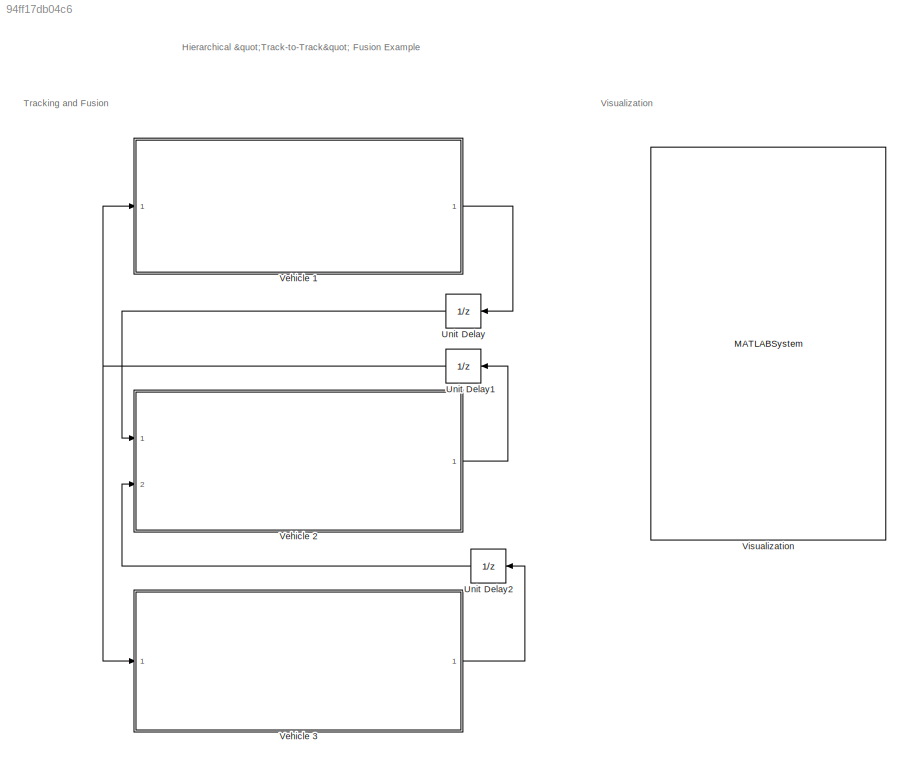
MODEL slx_94ff17db04c6
KIND model
CONFIG AbsTol = auto
CONFIG EnableMultiTasking = off
CONFIG FixedStep = 0.1
CONFIG MaxStep = auto
CONFIG MinStep = auto
CONFIG PreLoadFcn = V1Sources(1).SourceIndex = 1;\nV1Sources(1).IsInternalSource = true;\nV1Sources(1).CentralToLocalTransformFcn = 'scenarioToEgo';\nV1Sources(1).LocalToCentralTransformFcn = 'egoToScenario';\nV1Sources(2).SourceIndex = 4;\nV1Sources(2).IsInternalSource = false;\nV1Sources(2).CentralToLocalTransformFcn = 'scenarioToEgo';\nV1Sources(2).LocalToCentralTransformFcn = 'egoToScenario';\nload('TrackToTrackFusionSce...<+757ch>
CONFIG RelTol = 1e-3
CONFIG SampleTimeConstraint = Unconstrained
CONFIG SolverName = FixedStepDiscrete
CONFIG StartTime = 0.0
CONFIG StopTime = 6.45
BLOCK [UnitDelay] Unit Delay
  HasFrameUpgradeWarning = on
  NameLocation = top
  SampleTime = -1
  StateName = TrackFuser_V1
BLOCK [UnitDelay] Unit Delay1
  HasFrameUpgradeWarning = on
  NameLocation = top
  SampleTime = -1
  StateName = TrackFuser_V2
BLOCK [UnitDelay] Unit Delay2
  HasFrameUpgradeWarning = on
  NameLocation = top
  SampleTime = -1
  StateName = TrackFuser_V2
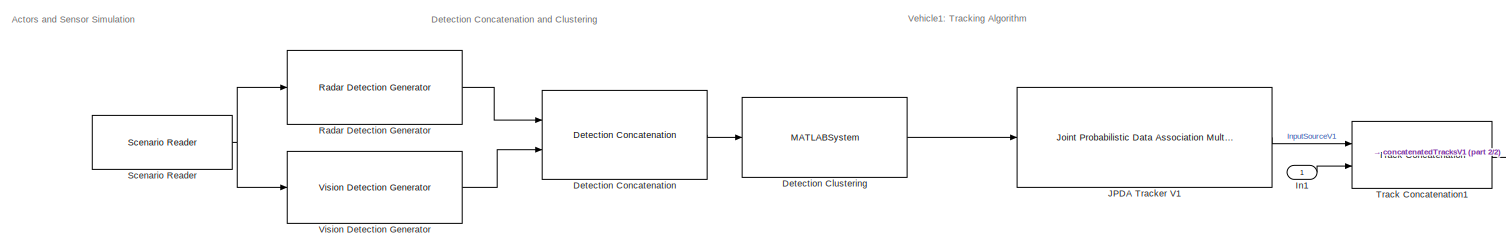
[diagram: Vehicle 1 - part 1/2, center side, full height]
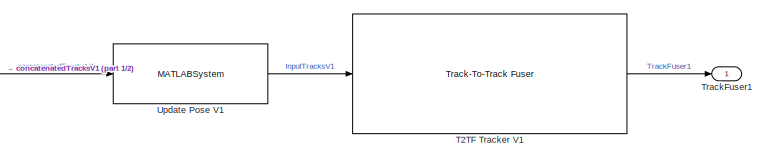
[diagram: Vehicle 1 - part 2/2, middle right region]
BLOCK [SubSystem] Vehicle 1
  Ports = [1, 1]
  RequestExecContextInheritance = off
BLOCK [MATLABSystem] Vehicle 1/Detection Clustering
  BusName = BusClusterDetections
  BusNameSource = Auto
  ClusterSize = 4.7
  MaskDisplay = disp(['Detection' char(10) 'Clustering']);\nport_label('input',1,'In');\nport_label('output',1,'Out');
  MaskType = helperClusterFuserDetections
  Ports = [1, 1]
  SimulateUsing = Code generation
  System = helperClusterFuserDetections
BLOCK [Reference] Vehicle 1/Detection Concatenation  REF=trackingutilitieslib/Detection Concatenation
  Ports = [2, 1]
  SourceBlock = trackingutilitieslib/Detection Concatenation
  SourceProductBaseCode = TF,AE,DR,RA,UV,VE
  SourceType = matlabshared.tracking.internal.DetectionConcatenation
BLOCK [Inport] Vehicle 1/In1
  NameLocation = top
BLOCK [Reference] Vehicle 1/JPDA Tracker V1  REF=motalgorithmslib/Joint Probabilistic Data Association Multi Object Tracker
  Ports = [1, 1]
  SourceBlock = motalgorithmslib/Joint Probabilistic Data Association Multi Object Tracker
  SourceProductBaseCode = TF
  SourceType = fusion.simulink.trackerJPDA
BLOCK [Reference] Vehicle 1/Radar Detection Generator  REF=drivingscenarioandsensors/Radar Detection Generator
  Ports = [1, 1]
  SourceBlock = drivingscenarioandsensors/Radar Detection Generator
  SourceProductBaseCode = DR
  SourceType = radarDetectionGenerator
BLOCK [Reference] Vehicle 1/Scenario Reader  REF=drivingscenarioandsensors/Scenario Reader
  Ports = [0, 1]
  SourceBlock = drivingscenarioandsensors/Scenario Reader
  SourceProductBaseCode = DR
  SourceType = driving.scenario.internal.ScenarioReader
BLOCK [Reference] Vehicle 1/T2TF Tracker V1  REF=motalgorithmslib/Track-To-Track Fuser
  Ports = [1, 1]
  SourceBlock = motalgorithmslib/Track-To-Track Fuser
  SourceProductBaseCode = TF
  SourceType = fusion.simulink.trackFuser
BLOCK [Reference] Vehicle 1/Track Concatenation1  REF=trackingutilitieslib/Track Concatenation
  Ports = [2, 1]
  SourceBlock = trackingutilitieslib/Track Concatenation
  SourceProductBaseCode = TF,AE,DR,RA,UV,VE
  SourceType = matlabshared.tracking.internal.TrackConcatenation
BLOCK [Outport] Vehicle 1/TrackFuser1
  NameLocation = top
BLOCK [MATLABSystem] Vehicle 1/Update Pose V1
  BusName = UpdatePoseV1
  BusNameSource = Property
  DataFile = { 'v1Pose' }
  DataVariableName = dataV1
  MaskDisplay = disp(['Helper' char(10) 'UpdatePose']);\nport_label('input',1,'In');\nport_label('output',1,'Tracks');
  MaskType = HelperUpdatePose
  Ports = [1, 1]
  System = HelperUpdatePose
  TrackerId = 1
BLOCK [Reference] Vehicle 1/Vision Detection Generator  REF=drivingscenarioandsensors/Vision Detection Generator
  Ports = [1, 1]
  SourceBlock = drivingscenarioandsensors/Vision Detection Generator
  SourceProductBaseCode = DR
  SourceType = visionDetectionGenerator
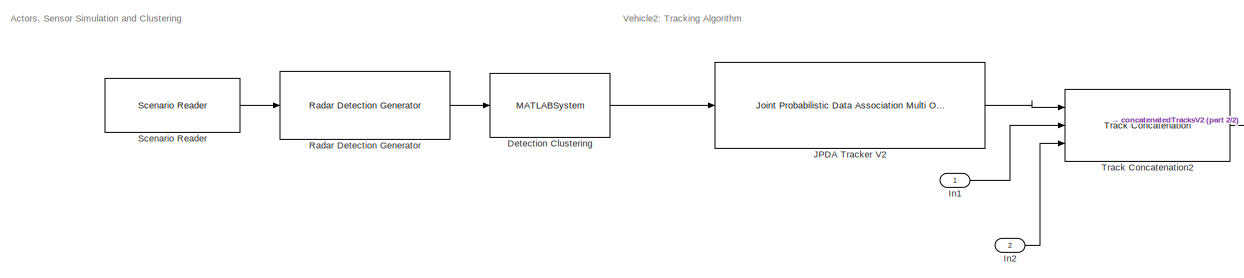
[diagram: Vehicle 2 - part 1/2, left side, full height]
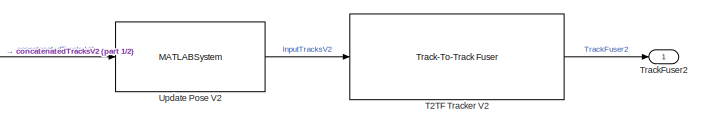
[diagram: Vehicle 2 - part 2/2, middle right region]
BLOCK [SubSystem] Vehicle 2
  Ports = [2, 1]
  RequestExecContextInheritance = off
BLOCK [MATLABSystem] Vehicle 2/Detection Clustering
  BusName = BusClusterDetections
  BusNameSource = Auto
  ClusterSize = 4.7
  MaskDisplay = disp(['Detection' char(10) 'Clustering']);\nport_label('input',1,'In');\nport_label('output',1,'Out');
  MaskType = helperClusterFuserDetections
  Ports = [1, 1]
  SimulateUsing = Code generation
  System = helperClusterFuserDetections
BLOCK [Inport] Vehicle 2/In1
  NameLocation = top
BLOCK [Inport] Vehicle 2/In2
  Port = 2
BLOCK [Reference] Vehicle 2/JPDA Tracker V2  REF=motalgorithmslib/Joint Probabilistic Data Association Multi Object Tracker
  Ports = [1, 1]
  SourceBlock = motalgorithmslib/Joint Probabilistic Data Association Multi Object Tracker
  SourceProductBaseCode = TF
  SourceType = fusion.simulink.trackerJPDA
BLOCK [Reference] Vehicle 2/Radar Detection Generator  REF=drivingscenarioandsensors/Radar Detection Generator
  Ports = [1, 1]
  SourceBlock = drivingscenarioandsensors/Radar Detection Generator
  SourceProductBaseCode = DR
  SourceType = radarDetectionGenerator
BLOCK [Reference] Vehicle 2/Scenario Reader  REF=drivingscenarioandsensors/Scenario Reader
  Ports = [0, 1]
  SourceBlock = drivingscenarioandsensors/Scenario Reader
  SourceProductBaseCode = DR
  SourceType = driving.scenario.internal.ScenarioReader
BLOCK [Reference] Vehicle 2/T2TF Tracker V2  REF=motalgorithmslib/Track-To-Track Fuser
  Ports = [1, 1]
  SourceBlock = motalgorithmslib/Track-To-Track Fuser
  SourceProductBaseCode = TF
  SourceType = fusion.simulink.trackFuser
BLOCK [Reference] Vehicle 2/Track Concatenation2  REF=trackingutilitieslib/Track Concatenation
  Ports = [3, 1]
  SourceBlock = trackingutilitieslib/Track Concatenation
  SourceProductBaseCode = TF,AE,DR,RA,UV,VE
  SourceType = matlabshared.tracking.internal.TrackConcatenation
BLOCK [Outport] Vehicle 2/TrackFuser2
  NameLocation = top
BLOCK [MATLABSystem] Vehicle 2/Update Pose V2
  BusName = UpdatePoseV2
  BusNameSource = Property
  DataFile = { 'v2Pose' }
  DataVariableName = dataV2
  MaskDisplay = disp(['Helper' char(10) 'UpdatePose']);\nport_label('input',1,'In');\nport_label('output',1,'Tracks');
  MaskType = HelperUpdatePose
  Ports = [1, 1]
  System = HelperUpdatePose
  TrackerId = 2
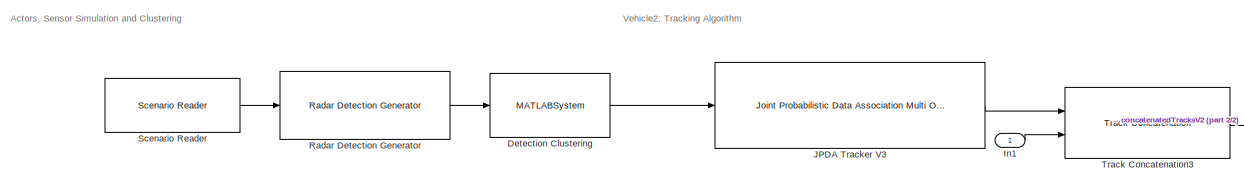
[diagram: Vehicle 3 - part 1/2, left side, full height]
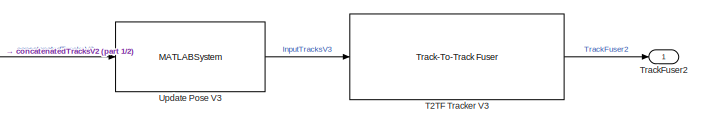
[diagram: Vehicle 3 - part 2/2, bottom right region]
BLOCK [SubSystem] Vehicle 3
  Ports = [1, 1]
  RequestExecContextInheritance = off
BLOCK [MATLABSystem] Vehicle 3/Detection Clustering
  BusName = BusClusterDetections
  BusNameSource = Auto
  ClusterSize = 4.7
  MaskDisplay = disp(['Detection' char(10) 'Clustering']);\nport_label('input',1,'In');\nport_label('output',1,'Out');
  MaskType = helperClusterFuserDetections
  Ports = [1, 1]
  SimulateUsing = Code generation
  System = helperClusterFuserDetections
BLOCK [Inport] Vehicle 3/In1
  NameLocation = top
BLOCK [Reference] Vehicle 3/JPDA Tracker V3  REF=motalgorithmslib/Joint Probabilistic Data Association Multi Object Tracker
  Ports = [1, 1]
  SourceBlock = motalgorithmslib/Joint Probabilistic Data Association Multi Object Tracker
  SourceProductBaseCode = TF
  SourceType = fusion.simulink.trackerJPDA
BLOCK [Reference] Vehicle 3/Radar Detection Generator  REF=drivingscenarioandsensors/Radar Detection Generator
  Ports = [1, 1]
  SourceBlock = drivingscenarioandsensors/Radar Detection Generator
  SourceProductBaseCode = DR
  SourceType = radarDetectionGenerator
BLOCK [Reference] Vehicle 3/Scenario Reader  REF=drivingscenarioandsensors/Scenario Reader
  Ports = [0, 1]
  SourceBlock = drivingscenarioandsensors/Scenario Reader
  SourceProductBaseCode = DR
  SourceType = driving.scenario.internal.ScenarioReader
BLOCK [Reference] Vehicle 3/T2TF Tracker V3  REF=motalgorithmslib/Track-To-Track Fuser
  Ports = [1, 1]
  SourceBlock = motalgorithmslib/Track-To-Track Fuser
  SourceProductBaseCode = TF
  SourceType = fusion.simulink.trackFuser
BLOCK [Reference] Vehicle 3/Track Concatenation3  REF=trackingutilitieslib/Track Concatenation
  Ports = [2, 1]
  SourceBlock = trackingutilitieslib/Track Concatenation
  SourceProductBaseCode = TF,AE,DR,RA,UV,VE
  SourceType = matlabshared.tracking.internal.TrackConcatenation
BLOCK [Outport] Vehicle 3/TrackFuser2
  NameLocation = top
BLOCK [MATLABSystem] Vehicle 3/Update Pose V3
  BusName = UpdatePoseV3
  BusNameSource = Property
  DataFile = { 'v3Pose' }
  DataVariableName = dataV3
  MaskDisplay = disp(['Helper' char(10) 'UpdatePose']);\nport_label('input',1,'In');\nport_label('output',1,'Tracks');
  MaskType = HelperUpdatePose
  Ports = [1, 1]
  System = HelperUpdatePose
  TrackerId = 5
BLOCK [MATLABSystem] Visualization
  FusedTracksBlockNames = { 'T2TF Tracker V1', 'T2TF Tracker V2','T2TF Tracker V3' }
  MaskDisplay = disp(['Helper' char(10) ' Track Display']);
  MaskType = HelperTrackDisplay
  ModelCloseFcn = helperCloseAll(gcb)
  Ports = []
  PosSelector = [ 1, 0, 0, 0, 0, 0; 0, 0, 1, 0, 0, 0; 0, 0, 0, 0, 1, 0 ]
  PoseReaderBlockNames = { 'Detection Clustering', 'Detection Clustering' }
  SourceTracksBlockNames = { 'JPDA Tracker V1', 'JPDA Tracker V2', 'JPDA Tracker V3' }
  SourceUpdatePoseBlockNames = { 'Update Pose V1', 'Update Pose V2' ,'Update Pose V3' }
  SubsystemBlockNames = { 'Vehicle 1', 'Vehicle 2' ,'Vehicle 3' }
  System = HelperTrackDisplay
ANNOTATION (root): Tracking and Fusion
ANNOTATION (root): Visualization
ANNOTATION (root): Hierarchical "Track-to-Track" Fusion Example
ANNOTATION Vehicle 1: Actors and Sensor Simulation
ANNOTATION Vehicle 1: Detection Concatenation and Clustering
ANNOTATION Vehicle 1: Vehicle1: Tracking Algorithm
ANNOTATION Vehicle 2: Actors, Sensor Simulation and Clustering
ANNOTATION Vehicle 2: Vehicle2: Tracking Algorithm
ANNOTATION Vehicle 3: Actors, Sensor Simulation and Clustering
ANNOTATION Vehicle 3: Vehicle2: Tracking Algorithm
NET Unit Delay1:1 -> Vehicle 1:1, Vehicle 3:1
LINE Unit Delay2:1 -> Vehicle 2:2
LINE Unit Delay:1 -> Vehicle 2:1
LINE Vehicle 1/Detection Clustering:1 -> Vehicle 1/JPDA Tracker V1:1
LINE Vehicle 1/Detection Concatenation:1 -> Vehicle 1/Detection Clustering:1
LINE Vehicle 1/In1:1 -> Vehicle 1/Track Concatenation1:2
LINE Vehicle 1/JPDA Tracker V1:1 -> Vehicle 1/Track Concatenation1:1
LINE Vehicle 1/Radar Detection Generator:1 -> Vehicle 1/Detection Concatenation:1
NET Vehicle 1/Scenario Reader:1 -> Vehicle 1/Radar Detection Generator:1, Vehicle 1/Vision Detection Generator:1
LINE Vehicle 1/T2TF Tracker V1:1 -> Vehicle 1/TrackFuser1:1
LINE Vehicle 1/Track Concatenation1:1 -> Vehicle 1/Update Pose V1:1
LINE Vehicle 1/Update Pose V1:1 -> Vehicle 1/T2TF Tracker V1:1
LINE Vehicle 1/Vision Detection Generator:1 -> Vehicle 1/Detection Concatenation:2
LINE Vehicle 1:1 -> Unit Delay:1
LINE Vehicle 2/Detection Clustering:1 -> Vehicle 2/JPDA Tracker V2:1
LINE Vehicle 2/In1:1 -> Vehicle 2/Track Concatenation2:2
LINE Vehicle 2/In2:1 -> Vehicle 2/Track Concatenation2:3
LINE Vehicle 2/JPDA Tracker V2:1 -> Vehicle 2/Track Concatenation2:1
LINE Vehicle 2/Radar Detection Generator:1 -> Vehicle 2/Detection Clustering:1
LINE Vehicle 2/Scenario Reader:1 -> Vehicle 2/Radar Detection Generator:1
LINE Vehicle 2/T2TF Tracker V2:1 -> Vehicle 2/TrackFuser2:1
LINE Vehicle 2/Track Concatenation2:1 -> Vehicle 2/Update Pose V2:1
LINE Vehicle 2/Update Pose V2:1 -> Vehicle 2/T2TF Tracker V2:1
LINE Vehicle 2:1 -> Unit Delay1:1
LINE Vehicle 3/Detection Clustering:1 -> Vehicle 3/JPDA Tracker V3:1
LINE Vehicle 3/In1:1 -> Vehicle 3/Track Concatenation3:2
LINE Vehicle 3/JPDA Tracker V3:1 -> Vehicle 3/Track Concatenation3:1
LINE Vehicle 3/Radar Detection Generator:1 -> Vehicle 3/Detection Clustering:1
LINE Vehicle 3/Scenario Reader:1 -> Vehicle 3/Radar Detection Generator:1
LINE Vehicle 3/T2TF Tracker V3:1 -> Vehicle 3/TrackFuser2:1
LINE Vehicle 3/Track Concatenation3:1 -> Vehicle 3/Update Pose V3:1
LINE Vehicle 3/Update Pose V3:1 -> Vehicle 3/T2TF Tracker V3:1
LINE Vehicle 3:1 -> Unit Delay2:1
note: NET lines group one-source signal fan-out (src -> all destinations, sorted); 1:1 wires keep LINE
